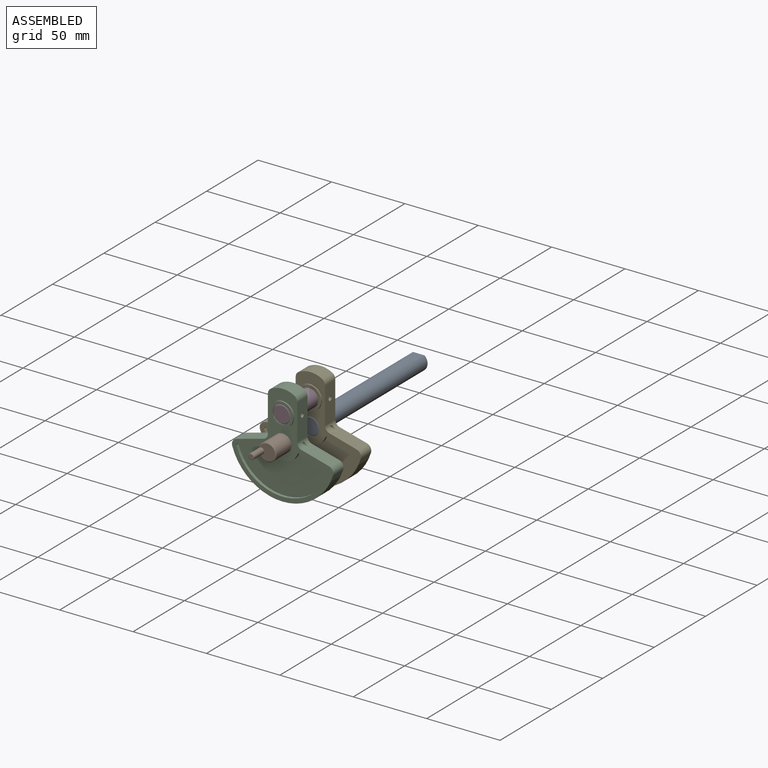
[diagram: assembled view]
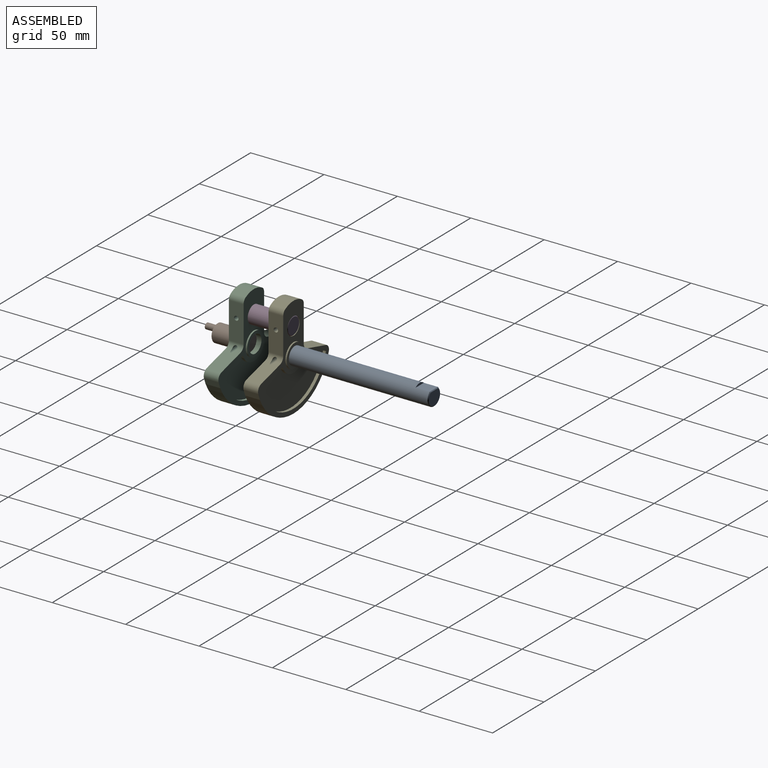
[diagram: assembled view, second angle]
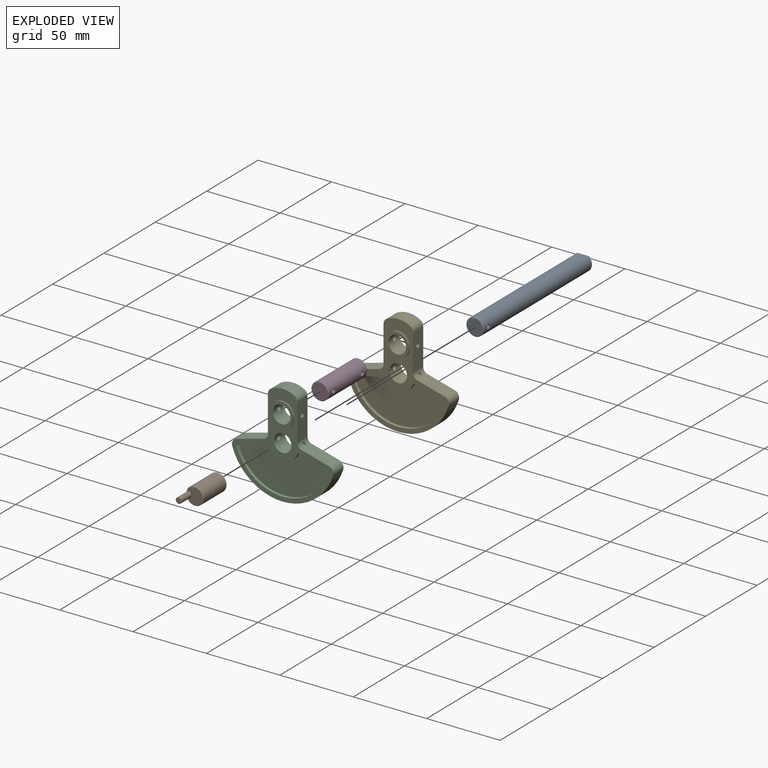
[diagram: exploded view]
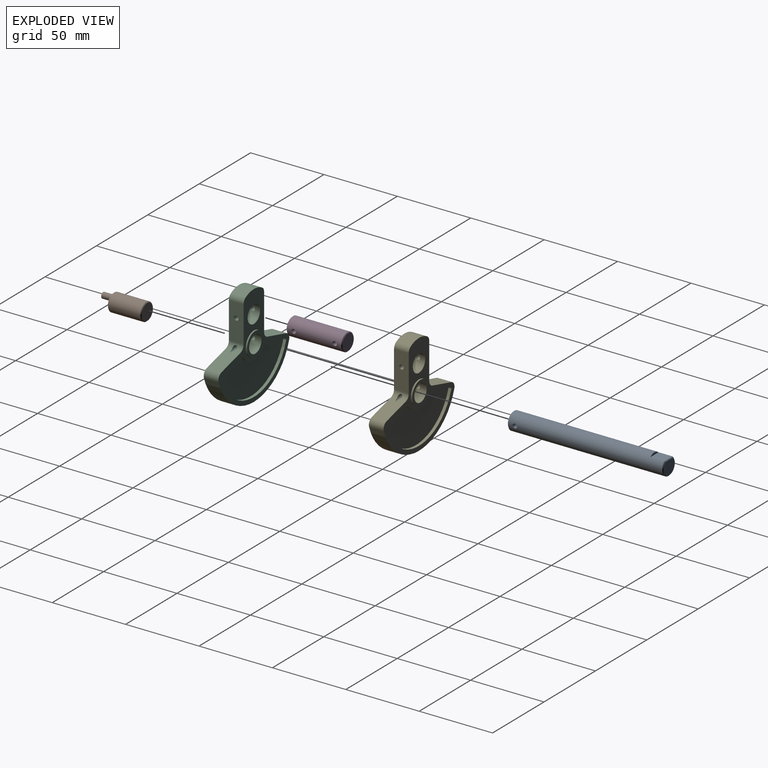
[diagram: exploded view, second angle]
ASSEMBLY  parts=5 mates=4
PART A: 9 faces, bbox 12x106x12 mm
  f0: cylinder r=6mm len=105mm, axis (0,-1,0), area 3861.8mm2, adj f3,f4,f5,f6,f8
  f1: plane 11x11mm, normal (0,1,0), area 95mm2, adj f5
  f2: plane 11x9.5mm, normal (0,-1,0), area 87.3mm2, adj f6,f7
  f3: plane 9.5x7.94mm, normal (0,0,1), area 75.4mm2, adj f0,f4,f7
  f4: plane 7.94x1.5mm, normal (0,-1,0), area 8.2mm2, adj f0,f3
  f5: cone r=6mm half-angle=45deg, axis (0,-1,0), area 25.5mm2, adj f0,f1
  f6: cone r=5.5mm half-angle=45deg, axis (0,1,0), area 19.5mm2, adj f0,f2,f7
  f7: plane 7.94x0.51mm, normal (0,-0.71,0.71), area 5.5mm2, adj f2,f3,f6
  f8: cylinder r=1.5mm len=12mm, axis (1,0,0), area 111.3mm2, adj f0
PART B: 8 faces, bbox 12x33x12 mm
  f0: cylinder r=6mm len=22mm, axis (0,-1,0), area 829.4mm2, adj f5,f6
  f1: plane 11x11mm, normal (0,1,0), area 95mm2, adj f5
  f2: plane 11x10.78mm, normal (0,-1,0), area 83.6mm2, adj f3,f6
  f3: cylinder r=2mm len=10.25mm, axis (0,1,0), area 123.7mm2, adj f2,f6,f7
  f4: plane 3.5x3.5mm, normal (0,-1,0), area 9.6mm2, adj f7
  f5: cone r=6mm half-angle=45deg, axis (0,-1,0), area 25.5mm2, adj f0,f1
  f6: cone r=5.5mm half-angle=45deg, axis (0,1,0), area 24mm2, adj f0,f2,f3
  f7: cone r=1.75mm half-angle=45deg, axis (0,1,0), area 4.2mm2, adj f3,f4
PART C: 43 faces, bbox 69x12x69.5 mm
  f0: plane 69.51x69.03mm, normal (0,1,0), area 938.5mm2, adj f1,f2,f3,f4,f5,f6,f7,f8
  f1: cylinder r=36mm len=68.66mm, axis (0,1,0), area 910.7mm2, adj f0,f2,f10,f11
  f2: cylinder r=4mm len=10mm, axis (0,1,0), area 64.6mm2, adj f0,f1,f3,f11
  f3: plane 18.58x10mm, normal (0.26,0,0.97), area 188.1mm2, adj f0,f2,f11,f36,f39,f40
  f4: plane 24.83x10mm, normal (1,0,0), area 241.3mm2, adj f0,f5,f11,f36,f42
  f5: cylinder r=4mm len=10mm, axis (0,1,0), area 41.9mm2, adj f0,f4,f6,f11
  f6: cylinder r=16mm len=16mm, axis (0,1,0), area 167.6mm2, adj f0,f5,f7,f11
  f7: cylinder r=4mm len=10mm, axis (0,1,0), area 41.9mm2, adj f0,f6,f8,f11
  f8: plane 24.83x10mm, normal (-1,0,0), area 241.3mm2, adj f0,f7,f11,f37,f41
  f9: plane 18.58x10mm, normal (-0.26,0,0.97), area 187.5mm2, adj f0,f10,f11,f37,f38
  f10: cylinder r=4mm len=10mm, axis (0,1,0), area 64.6mm2, adj f0,f1,f9,f11
  f11: plane 69.51x69.03mm, normal (0,-1,0), area 938.5mm2, adj f1,f2,f3,f4,f5,f6,f7,f8
  f12: cylinder r=8mm len=16mm, axis (0,1,0), area 50.3mm2, adj f11,f13
  f13: plane 16x16mm, normal (0,-1,0), area 88mm2, adj f12,f14
  f14: cylinder r=6mm len=12mm, axis (0,-1,0), area 400.4mm2, adj f0,f13,f41,f42
  f15: cylinder r=8mm len=16mm, axis (0,-1,0), area 50.3mm2, adj f0,f16
  f16: plane 16x16mm, normal (0,1,0), area 88mm2, adj f15,f17
  f17: cylinder r=6mm len=12mm, axis (0,1,0), area 400.5mm2, adj f11,f16,f38,f39
  f18: plane 19.37x5.19mm, normal (0.26,0,-0.97), area 40.1mm2, adj f11,f19,f25,f26
  f19: cylinder r=1mm len=2mm, axis (0,-1,0), area 3.2mm2, adj f11,f18,f20,f26
  f20: cylinder r=33mm len=62.94mm, axis (0,-1,0), area 167mm2, adj f11,f19,f21,f26
  f21: cylinder r=1mm len=2mm, axis (0,-1,0), area 3.2mm2, adj f11,f20,f22,f26
  f22: plane 19.37x5.19mm, normal (-0.26,0,-0.97), area 40.1mm2, adj f11,f21,f23,f26
  f23: cylinder r=1mm len=2mm, axis (0,-1,0), area 2.9mm2, adj f11,f22,f24,f26
  f24: cylinder r=11mm len=20.43mm, axis (0,-1,0), area 52.4mm2, adj f11,f23,f25,f26
  f25: cylinder r=1mm len=2mm, axis (0,-1,0), area 2.9mm2, adj f11,f18,f24,f26
  f26: plane 63.03x29.55mm, normal (0,-1,0), area 1248.2mm2, adj f18,f19,f20,f21,f22,f23,f24,f25
  f27: plane 19.37x5.19mm, normal (-0.26,0,-0.97), area 40.1mm2, adj f0,f28,f34,f35
  f28: cylinder r=1mm len=2mm, axis (0,1,0), area 2.9mm2, adj f0,f27,f29,f35
  f29: cylinder r=11mm len=20.43mm, axis (0,1,0), area 52.4mm2, adj f0,f28,f30,f35
  f30: cylinder r=1mm len=2mm, axis (0,1,0), area 2.9mm2, adj f0,f29,f31,f35
  f31: plane 19.37x5.19mm, normal (0.26,0,-0.97), area 40.1mm2, adj f0,f30,f32,f35
  f32: cylinder r=1mm len=2mm, axis (0,1,0), area 3.2mm2, adj f0,f31,f33,f35
  f33: cylinder r=33mm len=62.94mm, axis (0,1,0), area 167mm2, adj f0,f32,f34,f35
  f34: cylinder r=1mm len=2mm, axis (0,1,0), area 3.2mm2, adj f0,f27,f33,f35
  f35: plane 63.03x29.55mm, normal (0,1,0), area 1248.2mm2, adj f27,f28,f29,f30,f31,f32,f33,f34
  f36: cylinder r=4mm len=10mm, axis (0,1,0), area 42.9mm2, adj f0,f3,f4,f11,f39
  f37: cylinder r=4mm len=10mm, axis (0,1,0), area 42.9mm2, adj f0,f8,f9,f11,f38
  f38: cylinder r=1.5mm len=9.8mm, axis (-1,0,0), area 59.4mm2, adj f9,f17,f37
  f39: cylinder r=1.5mm len=9.19mm, axis (-1,0,0), area 58.8mm2, adj f3,f17,f36,f40
  f40: plane 1.35x0.16mm, normal (-1,0,0), area 0.1mm2, adj f3,f39
  f41: cylinder r=1.5mm len=4.19mm, axis (-1,0,0), area 38.6mm2, adj f8,f14
  f42: cylinder r=1.5mm len=4.19mm, axis (-1,0,0), area 38.6mm2, adj f4,f14
PART D: 7 faces, bbox 12x38x12 mm
  f0: cylinder r=6mm len=37mm, axis (0,-1,0), area 1366.4mm2, adj f3,f4,f5,f6
  f1: plane 11x11mm, normal (0,1,0), area 95mm2, adj f5
  f2: plane 11x11mm, normal (0,-1,0), area 95mm2, adj f6
  f3: cylinder r=1.5mm len=12mm, axis (1,0,0), area 111.3mm2, adj f0
  f4: cylinder r=1.5mm len=12mm, axis (1,0,0), area 111.3mm2, adj f0
  f5: cone r=6mm half-angle=45deg, axis (0,-1,0), area 25.5mm2, adj f0,f1
  f6: cone r=5.5mm half-angle=45deg, axis (0,1,0), area 25.5mm2, adj f0,f2
PART E: same geometry as C
PLACE A rot(axis=(0,0,-1),180deg) t=(-176.71,116.64,146)mm
PLACE B t=(-176.71,-31.36,146)mm
PLACE C t=(-176.71,-6.36,146)mm
PLACE D t=(-176.71,-17.36,164)mm
PLACE E t=(-176.71,20.64,146)mm
MATE revolute C.f12 <-> D.f0  axis (0,-1,0) through (-176.71,-17.36,164)mm
MATE revolute E.f17 <-> A.f0  axis (0,-1,0) through (-176.71,10.64,146)mm
MATE revolute D.f0 <-> E.f12  axis (0,1,0) through (-176.71,20.64,164)mm
MATE revolute C.f24 <-> B.f0  axis (0,1,0) through (-176.71,-8.36,146)mm
